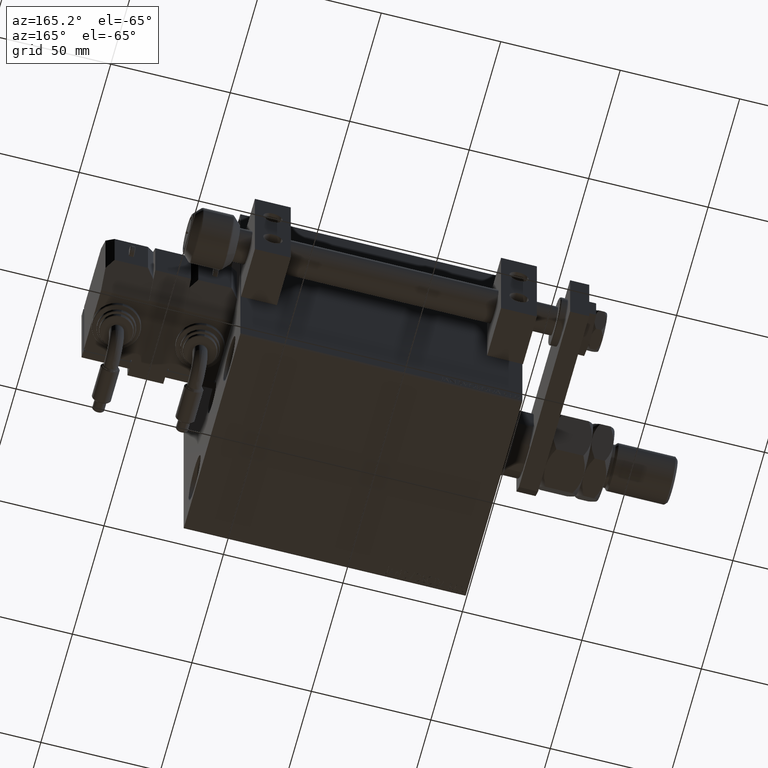
[diagram: clean part render]
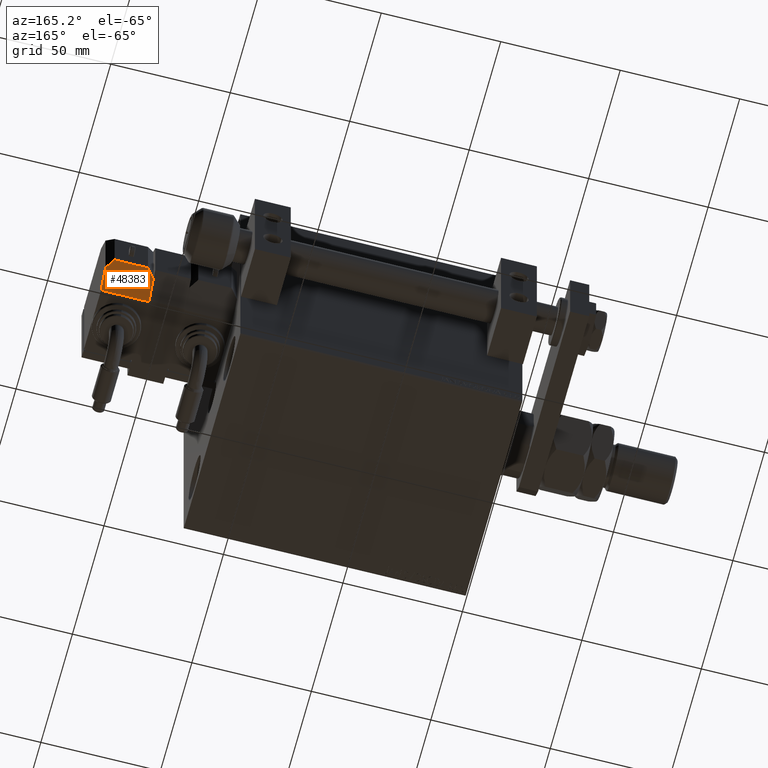
[diagram: same view with one face highlighted and labeled with its STEP entity id]
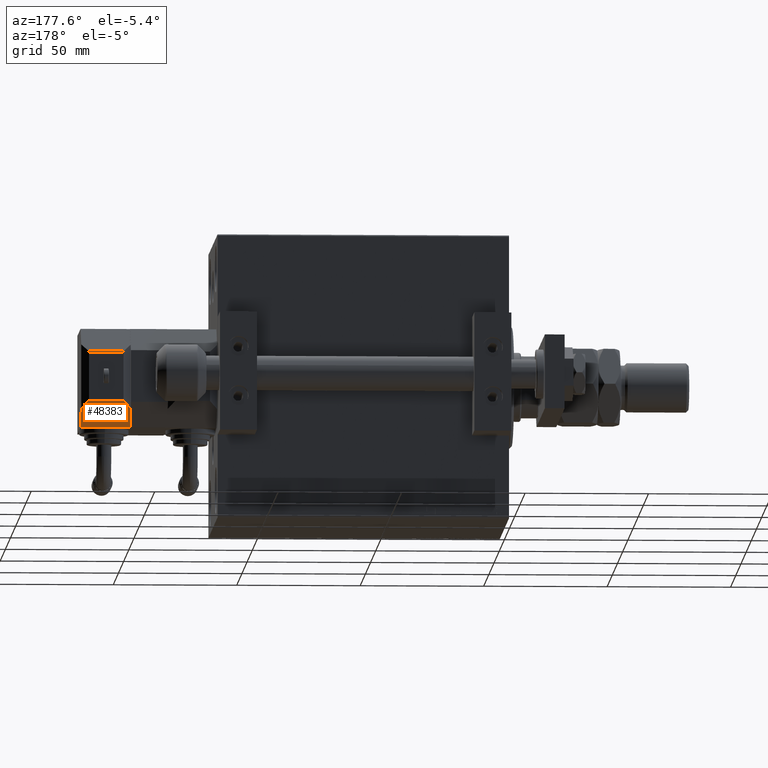
[diagram: same view with one face highlighted and labeled with its STEP entity id]
A machine part, auxiliary view. The second image highlights one B-rep face of the part: STEP entity #48383.
A second angle (auxiliary view) of the same face is appended — the face is thin or edge-on in the first view.
In plain terms, the highlighted planar face has unit normal (-0, -0.7071, 0.7071).
Its self-contained STEP definition (entity closure, byte-faithful):
#1142 = VECTOR ( 'NONE', #35863, 1000.000000000000000 ) ;
#1234 = VERTEX_POINT ( 'NONE', #48969 ) ;
#2411 = CARTESIAN_POINT ( 'NONE',  ( -19.99999999999993960, 13.49999999999986500, 10.00000000000000000 ) ) ;
#8907 = DIRECTION ( 'NONE',  ( 0.7071067811865356934, 0.7071067811865593411, 0.000000000000000000 ) ) ;
#9288 = ORIENTED_EDGE ( 'NONE', *, *, #17305, .F. ) ;
#10131 = DIRECTION ( 'NONE',  ( -0.7071067811865356934, -0.7071067811865593411, -0.000000000000000000 ) ) ;
#11408 = EDGE_CURVE ( 'NONE', #27929, #51155, #37504, .T. ) ;
#11701 = EDGE_CURVE ( 'NONE', #20031, #46576, #24138, .T. ) ;
#12619 = FACE_OUTER_BOUND ( 'NONE', #48362, .T. ) ;
#12695 = LINE ( 'NONE', #37695, #23828 ) ;
#13594 = LINE ( 'NONE', #37805, #28394 ) ;
#14898 = DIRECTION ( 'NONE',  ( 0.5773502691896124084, 0.5773502691896317263, -0.5773502691896331696 ) ) ;
#15084 = ORIENTED_EDGE ( 'NONE', *, *, #17250, .T. ) ;
#17250 = EDGE_CURVE ( 'NONE', #51924, #1234, #13594, .T. ) ;
#17305 = EDGE_CURVE ( 'NONE', #51155, #1234, #27655, .T. ) ;
#19104 = CARTESIAN_POINT ( 'NONE',  ( -12.99999999999994138, 20.50000000000009592, 10.00000000000000000 ) ) ;
#19317 = ORIENTED_EDGE ( 'NONE', *, *, #11701, .T. ) ;
#20031 = VERTEX_POINT ( 'NONE', #40055 ) ;
#20862 = CARTESIAN_POINT ( 'NONE',  ( -19.99999999999993960, 13.49999999999986500, 10.00000000000000000 ) ) ;
#21475 = VECTOR ( 'NONE', #29791, 1000.000000000000000 ) ;
#22355 = DIRECTION ( 'NONE',  ( -0.000000000000000000, -0.000000000000000000, -1.000000000000000000 ) ) ;
#23134 = CARTESIAN_POINT ( 'NONE',  ( -8.666666666666829499, 24.83333333333335347, 5.666666666666730912 ) ) ;
#23828 = VECTOR ( 'NONE', #40897, 1000.000000000000114 ) ;
#24138 = LINE ( 'NONE', #44625, #1142 ) ;
#24581 = DIRECTION ( 'NONE',  ( 0.7071067811865593411, -0.7071067811865356934, 0.000000000000000000 ) ) ;
#27655 = LINE ( 'NONE', #2411, #39460 ) ;
#27929 = VERTEX_POINT ( 'NONE', #19104 ) ;
#28394 = VECTOR ( 'NONE', #10131, 1000.000000000000000 ) ;
#29791 = DIRECTION ( 'NONE',  ( -0.7071067811865356934, -0.7071067811865593411, -0.000000000000000000 ) ) ;
#32124 = EDGE_CURVE ( 'NONE', #27929, #20031, #47859, .T. ) ;
#33558 = ORIENTED_EDGE ( 'NONE', *, *, #11408, .F. ) ;
#34052 = CARTESIAN_POINT ( 'NONE',  ( -19.99999999999993960, 13.49999999999986500, 10.00000000000000000 ) ) ;
#35863 = DIRECTION ( 'NONE',  ( -0.000000000000000000, -0.000000000000000000, -1.000000000000000000 ) ) ;
#37504 = LINE ( 'NONE', #34052, #21475 ) ;
#37695 = CARTESIAN_POINT ( 'NONE',  ( -10.00000000000004086, 23.50000000000009592, -7.000000000000004441 ) ) ;
#37805 = CARTESIAN_POINT ( 'NONE',  ( -19.99999999999993960, 13.49999999999986500, -10.00000000000000000 ) ) ;
#39460 = VECTOR ( 'NONE', #22355, 1000.000000000000000 ) ;
#40055 = CARTESIAN_POINT ( 'NONE',  ( -10.00000000000004086, 23.50000000000009592, 6.999999999999990230 ) ) ;
#40897 = DIRECTION ( 'NONE',  ( -0.5773502691896132966, -0.5773502691896327255, -0.5773502691896311712 ) ) ;
#42750 = CARTESIAN_POINT ( 'NONE',  ( -10.00000000000004086, 23.50000000000009592, -7.000000000000004441 ) ) ;
#42968 = ORIENTED_EDGE ( 'NONE', *, *, #44872, .T. ) ;
#44625 = CARTESIAN_POINT ( 'NONE',  ( -10.00000000000004086, 23.50000000000009592, 10.00000000000000000 ) ) ;
#44872 = EDGE_CURVE ( 'NONE', #46576, #51924, #12695, .T. ) ;
#45188 = AXIS2_PLACEMENT_3D ( 'NONE', #20862, #24581, #8907 ) ;
#46576 = VERTEX_POINT ( 'NONE', #42750 ) ;
#47859 = LINE ( 'NONE', #23134, #52372 ) ;
#48362 = EDGE_LOOP ( 'NONE', ( #19317, #42968, #15084, #9288, #33558, #50360 ) ) ;
#48383 = ADVANCED_FACE ( 'NONE', ( #12619 ), #49327, .F. ) ;
#48926 = CARTESIAN_POINT ( 'NONE',  ( -19.99999999999993960, 13.49999999999986500, 10.00000000000000000 ) ) ;
#48969 = CARTESIAN_POINT ( 'NONE',  ( -19.99999999999993960, 13.49999999999986500, -10.00000000000000000 ) ) ;
#49327 = PLANE ( 'NONE',  #45188 ) ;
#50360 = ORIENTED_EDGE ( 'NONE', *, *, #32124, .T. ) ;
#50912 = CARTESIAN_POINT ( 'NONE',  ( -12.99999999999994138, 20.50000000000009592, -10.00000000000000000 ) ) ;
#51155 = VERTEX_POINT ( 'NONE', #48926 ) ;
#51924 = VERTEX_POINT ( 'NONE', #50912 ) ;
#52372 = VECTOR ( 'NONE', #14898, 1000.000000000000000 ) ;